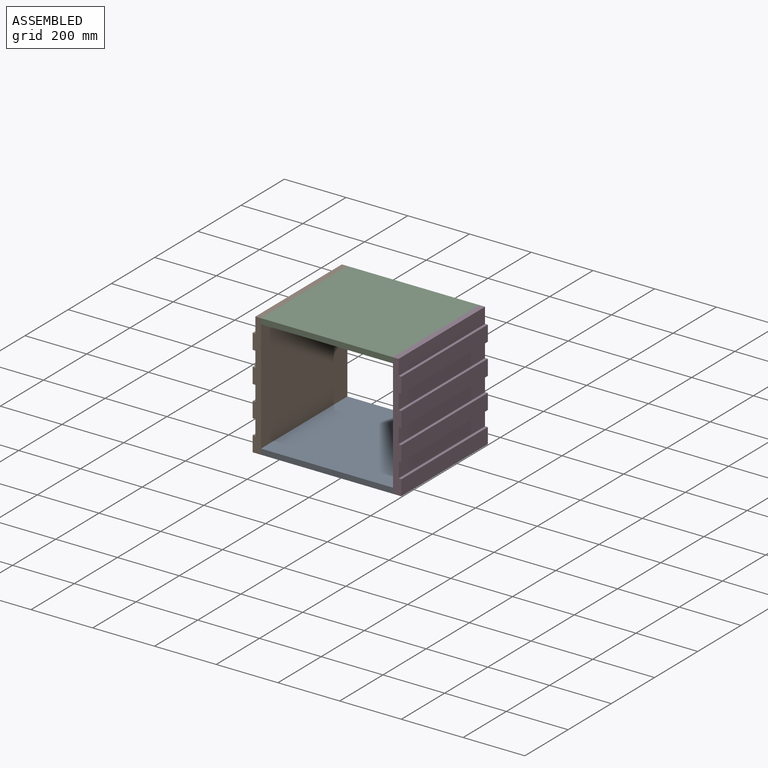
[diagram: assembled view]
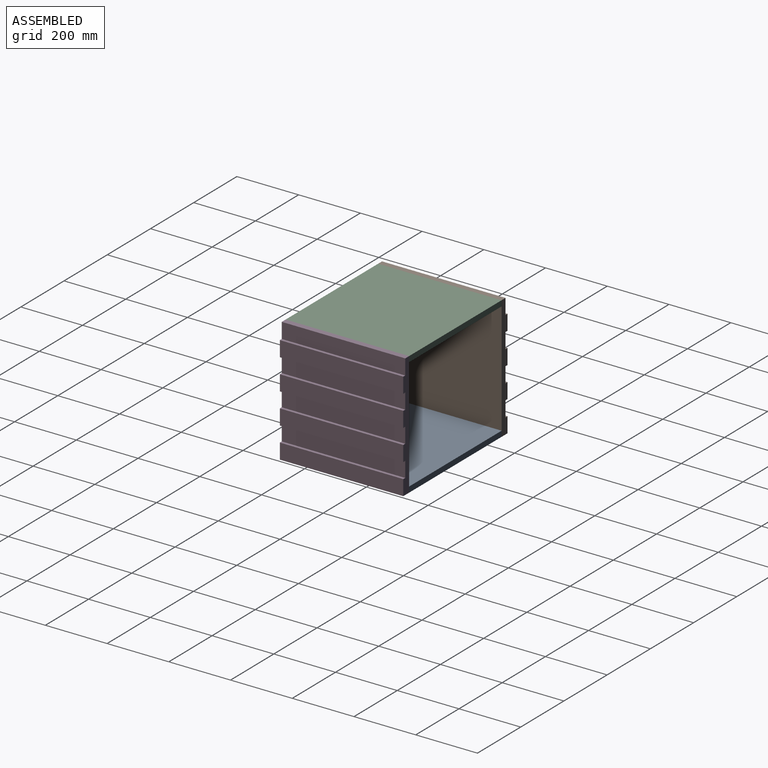
[diagram: assembled view, second angle]
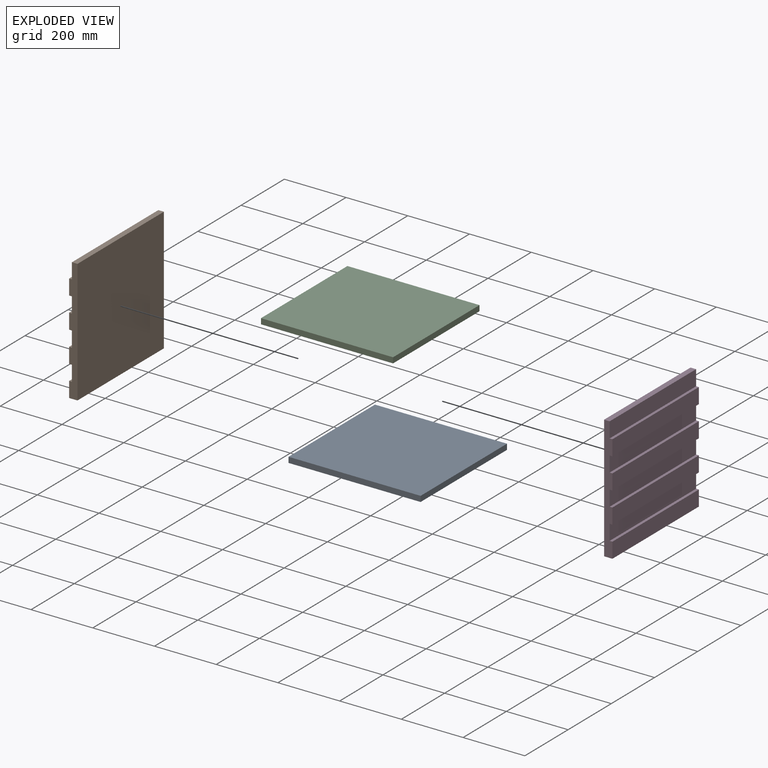
[diagram: exploded view]
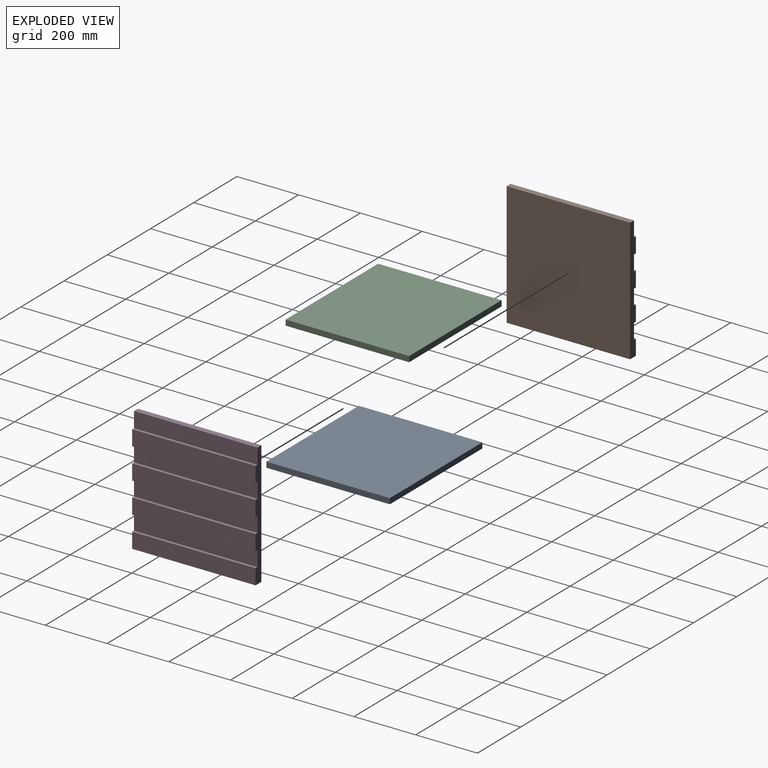
[diagram: exploded view, second angle]
ASSEMBLY  parts=4 mates=3
PART A: 6 faces, bbox 428x400x18 mm
  f0: plane 428x18mm, normal (0,1,0), area 7704mm2, adj f1,f3,f4,f5
  f1: plane 400x18mm, normal (-1,0,0), area 7200mm2, adj f0,f2,f4,f5
  f2: plane 428x18mm, normal (0,-1,0), area 7704mm2, adj f1,f3,f4,f5
  f3: plane 400x18mm, normal (1,0,0), area 7200mm2, adj f0,f2,f4,f5
  f4: plane 428x400mm, normal (0,0,1), area 171200mm2, adj f0,f1,f2,f3
  f5: plane 428x400mm, normal (0,0,-1), area 171200mm2, adj f0,f1,f2,f3
PART B: 20 faces, bbox 27x400x400 mm
  f0: plane 400x27mm, normal (0,0,1), area 9000mm2, adj f1,f2,f3,f4,f6,f7,f8,f9
  f1: plane 400x18mm, normal (0,1,0), area 7200mm2, adj f0,f5,f7,f19
  f2: plane 400x50mm, normal (1,0,0), area 20000mm2, adj f0,f5,f14,f16
  f3: plane 400x50mm, normal (1,0,0), area 20000mm2, adj f0,f5,f11,f13
  f4: plane 400x27mm, normal (0,-1,0), area 10800mm2, adj f0,f5,f7,f9
  f5: plane 400x27mm, normal (0,0,-1), area 9000mm2, adj f1,f2,f3,f4,f6,f7,f8,f9
  f6: plane 400x50mm, normal (1,0,0), area 20000mm2, adj f0,f5,f8,f10
  f7: plane 400x400mm, normal (-1,0,0), area 160000mm2, adj f0,f1,f4,f5
  f8: plane 400x9mm, normal (0,1,0), area 3600mm2, adj f0,f5,f6,f9
  f9: plane 400x50mm, normal (1,0,0), area 20000mm2, adj f0,f4,f5,f8
  f10: plane 400x9mm, normal (0,-1,0), area 3600mm2, adj f0,f5,f6,f12
  f11: plane 400x9mm, normal (0,1,0), area 3600mm2, adj f0,f3,f5,f12
  f12: plane 400x50mm, normal (1,0,0), area 20000mm2, adj f0,f5,f10,f11
  f13: plane 400x9mm, normal (0,-1,0), area 3600mm2, adj f0,f3,f5,f15
  f14: plane 400x9mm, normal (0,1,0), area 3600mm2, adj f0,f2,f5,f15
  f15: plane 400x50mm, normal (1,0,0), area 20000mm2, adj f0,f5,f13,f14
  f16: plane 400x9mm, normal (0,-1,0), area 3600mm2, adj f0,f2,f5,f17
  f17: plane 400x50mm, normal (1,0,0), area 20000mm2, adj f0,f5,f16,f18
  f18: plane 400x9mm, normal (0,1,0), area 3600mm2, adj f0,f5,f17,f19
  f19: plane 400x50mm, normal (1,0,0), area 20000mm2, adj f0,f1,f5,f18
PART C: same geometry as A
PART D: same geometry as B
PLACE A t=(-30.19,60.02,-251.46)mm
PLACE B rot(axis=(0,-0.71,-0.71),180deg) t=(-244.19,-143.57,-67.85)mm
PLACE C t=(-30.19,60.02,130.54)mm
PLACE D rot(axis=(1,0,0),90deg) t=(183.81,-2.24,-67.85)mm
MATE fastened C.f3 <-> D.f7  axis (1,0,0) through (183.81,-72.9,130.54)mm
MATE fastened B.f7 <-> C.f1  axis (1,0,0) through (-244.19,-72.9,148.54)mm
MATE fastened B.f7 <-> A.f1  axis (1,0,0) through (-244.19,-72.9,-251.46)mm
